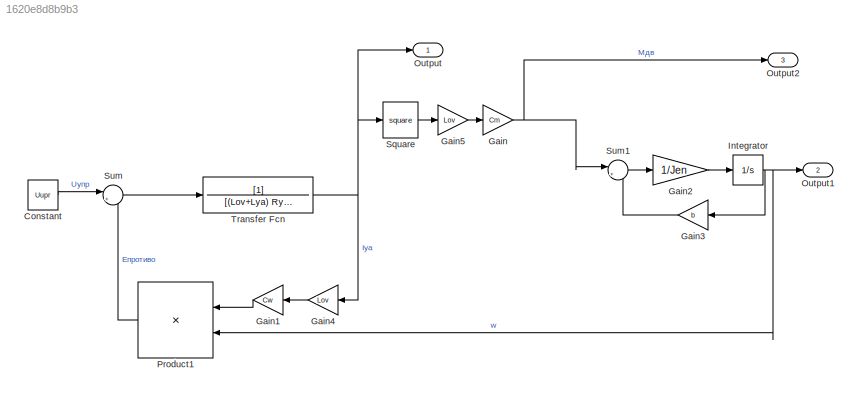
MODEL slx_1620e8d8b9b3
KIND model
CONFIG AbsTol = auto
CONFIG EnableMultiTasking = off
CONFIG FixedStep = auto
CONFIG MaxStep = auto
CONFIG MinStep = auto
CONFIG RelTol = 1e-3
CONFIG SampleTimeConstraint = Unconstrained
CONFIG SolverName = VariableStepAuto
CONFIG StartTime = 0.0
CONFIG StopTime = 10.0
BLOCK [Constant] Constant
  Value = Uupr
BLOCK [Gain] Gain
  Gain = Cm
BLOCK [Gain] Gain1
  Gain = Cw
  NameLocation = top
BLOCK [Gain] Gain2
  Gain = 1/Jen
BLOCK [Gain] Gain3
  Gain = b
  NameLocation = top
BLOCK [Gain] Gain4
  Gain = Lov
  NameLocation = top
BLOCK [Gain] Gain5
  Gain = Lov
BLOCK [Integrator] Integrator
BLOCK [Outport] Output
  SignalName = Iya
BLOCK [Outport] Output1
  Port = 2
  SignalName = w
BLOCK [Outport] Output2
  Port = 3
  SignalName = M
BLOCK [Product] Product1
  NameLocation = top
BLOCK [Math] Square
  Operator = square
BLOCK [Sum] Sum
  Inputs = |+-
BLOCK [Sum] Sum1
  Inputs = |+-
BLOCK [TransferFcn] Transfer Fcn
  Denominator = [(Lov+Lya) Rya]
LINE Constant:1 -> Sum:1
LINE Gain1:1 -> Product1:1
LINE Gain2:1 -> Integrator:1
LINE Gain3:1 -> Sum1:2
LINE Gain4:1 -> Gain1:1
LINE Gain5:1 -> Gain:1
NET Gain:1 -> Output2:1, Sum1:1
NET Integrator:1 -> Gain3:1, Output1:1, Product1:2
LINE Product1:1 -> Sum:2
LINE Square:1 -> Gain5:1
LINE Sum1:1 -> Gain2:1
LINE Sum:1 -> Transfer Fcn:1
NET Transfer Fcn:1 -> Gain4:1, Output:1, Square:1
note: NET lines group one-source signal fan-out (src -> all destinations, sorted); 1:1 wires keep LINE
